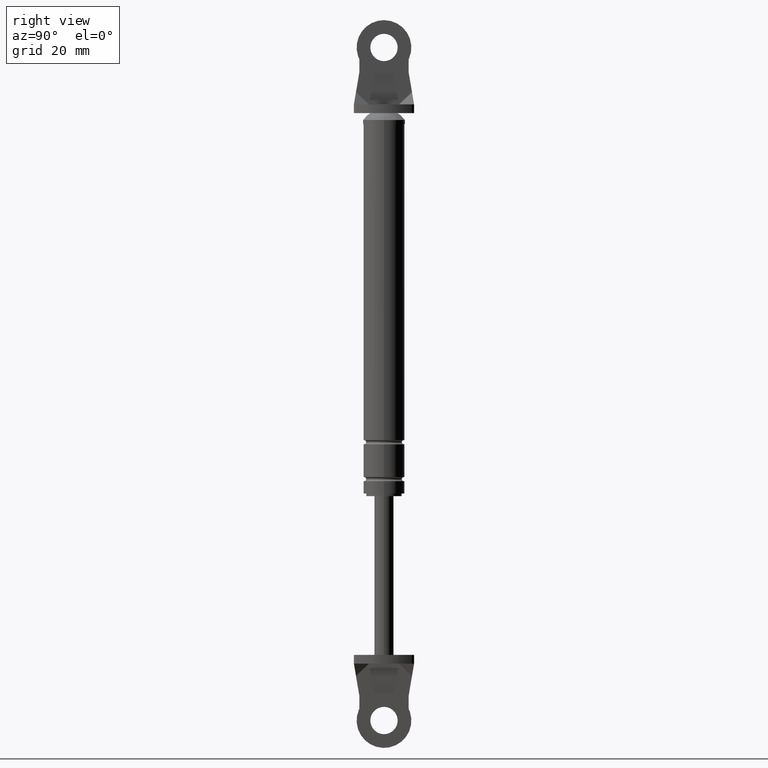
[diagram: clean part render]
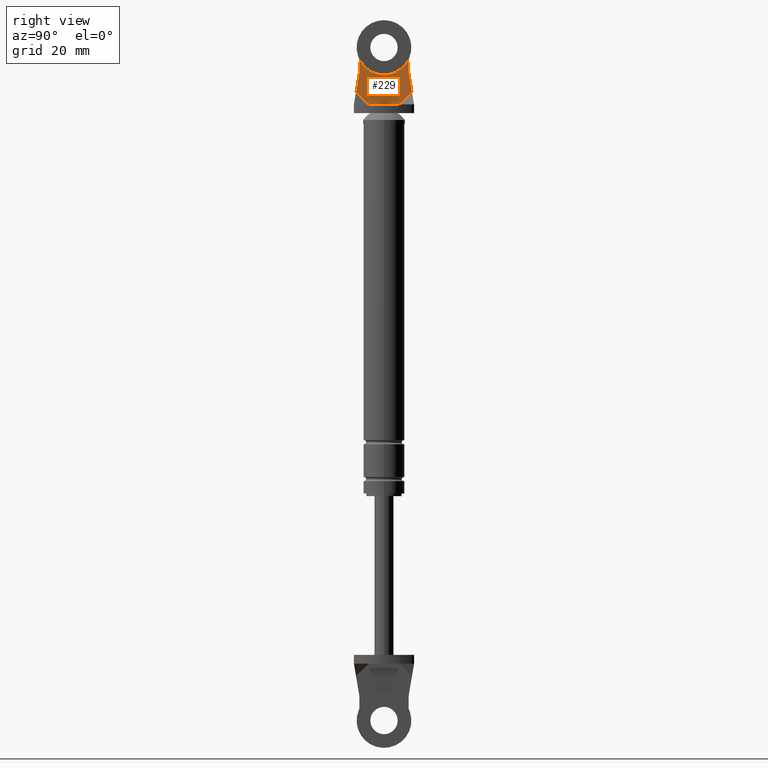
[diagram: same view with one face highlighted and labeled with its STEP entity id]
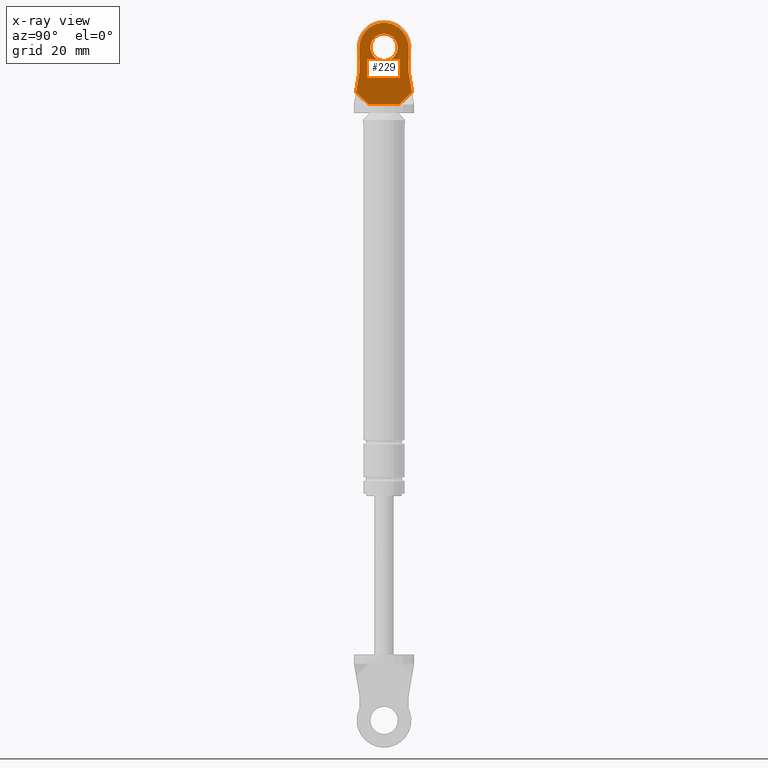
[diagram: x-ray of the same camera — body ghosted, the highlighted face saturated]
A machine part, right view. The second image highlights one B-rep face of the part: STEP entity #229.
The next image is the same camera in x-ray: the body ghosted, the highlighted face saturated — about 0% of this face is hidden behind the body in this view.
In plain terms, the highlighted planar face has unit normal (1, 0, 0).
Its self-contained STEP definition (entity closure, byte-faithful):
#229=ADVANCED_FACE('',(#540,#541),#539,.T.);
#539=PLANE('',#1231);
#540=FACE_OUTER_BOUND('',#1232,.T.);
#541=FACE_BOUND('',#1233,.T.);
#1228=CARTESIAN_POINT('',(3.20000000000E+000,-1.22847457627E+001,2.37800000000E+001));
#1229=DIRECTION('',(1.00000000000E+000,0.00000000000E+000,0.00000000000E+000));
#1230=DIRECTION('',(0.00000000000E+000,0.00000000000E+000,-1.00000000000E+000));
#1231=AXIS2_PLACEMENT_3D('',#1228,#1229,#1230);
#1232=EDGE_LOOP('',(#1731,#1732,#1733,#1734,#1735,#1736,#1737,#1738));
#1233=EDGE_LOOP('',(#1739,#1740));
#1731=ORIENTED_EDGE('',*,*,#2081,.F.);
#1732=ORIENTED_EDGE('',*,*,#2051,.F.);
#1733=ORIENTED_EDGE('',*,*,#2082,.F.);
#1734=ORIENTED_EDGE('',*,*,#2077,.T.);
#1735=ORIENTED_EDGE('',*,*,#2074,.T.);
#1736=ORIENTED_EDGE('',*,*,#2071,.F.);
#1737=ORIENTED_EDGE('',*,*,#2068,.T.);
#1738=ORIENTED_EDGE('',*,*,#2065,.T.);
#1739=ORIENTED_EDGE('',*,*,#2083,.T.);
#1740=ORIENTED_EDGE('',*,*,#2084,.T.);
#2051=EDGE_CURVE('',#2566,#2573,#2574,.T.);
#2065=EDGE_CURVE('',#2665,#2658,#2666,.T.);
#2068=EDGE_CURVE('',#2685,#2665,#2686,.T.);
#2071=EDGE_CURVE('',#2685,#2705,#2706,.T.);
#2074=EDGE_CURVE('',#2725,#2705,#2726,.T.);
#2077=EDGE_CURVE('',#2744,#2725,#2745,.T.);
#2081=EDGE_CURVE('',#2573,#2658,#2769,.T.);
#2082=EDGE_CURVE('',#2744,#2566,#2775,.T.);
#2083=EDGE_CURVE('',#2781,#2782,#2783,.T.);
#2084=EDGE_CURVE('',#2782,#2781,#2789,.T.);
#2566=VERTEX_POINT('',#3760);
#2573=VERTEX_POINT('',#3763);
#2574=LINE('',#3764,#3765);
#2658=VERTEX_POINT('',#3811);
#2665=VERTEX_POINT('',#3814);
#2666=LINE('',#3815,#3816);
#2685=VERTEX_POINT('',#3825);
#2686=LINE('',#3826,#3827);
#2705=VERTEX_POINT('',#3837);
#2706=CIRCLE('',#3841,9.00000000000E+000);
#2725=VERTEX_POINT('',#3849);
#2726=LINE('',#3850,#3851);
#2744=VERTEX_POINT('',#3859);
#2745=LINE('',#3860,#3861);
#2769=LINE('',#3870,#3871);
#2775=LINE('',#3873,#3874);
#2781=VERTEX_POINT('',#3876);
#2782=VERTEX_POINT('',#3877);
#2783=CIRCLE('',#3881,5.00000000000E+000);
#2789=CIRCLE('',#3885,5.00000000000E+000);
#3760=CARTESIAN_POINT('',(3.20000000000E+000,-5.50000000000E+000,2.08000000000E+001));
#3763=CARTESIAN_POINT('',(3.20000000000E+000,5.50000000000E+000,2.08000000000E+001));
#3764=CARTESIAN_POINT('',(3.20000000000E+000,-5.50000000000E+000,2.08000000000E+001));
#3765=VECTOR('',#3766,1.10000000000E+001);
#3766=DIRECTION('',(0.00000000000E+000,1.00000000000E+000,0.00000000000E+000));
#3811=CARTESIAN_POINT('',(3.20000000000E+000,1.02372881356E+001,1.63000000000E+001));
#3814=CARTESIAN_POINT('',(3.20000000000E+000,9.00000000000E+000,9.00000000000E+000));
#3815=CARTESIAN_POINT('',(3.20000000000E+000,9.00000000000E+000,9.00000000000E+000));
#3816=VECTOR('',#3817,7.40411250120E+000);
#3817=DIRECTION('',(0.00000000000E+000,1.67108230108E-001,9.85938557634E-001));
#3825=CARTESIAN_POINT('',(3.20000000000E+000,9.00000000000E+000,-9.98396631623E-015));
#3826=CARTESIAN_POINT('',(3.20000000000E+000,9.00000000000E+000,-9.98396631623E-015));
#3827=VECTOR('',#3828,9.00000000000E+000);
#3828=DIRECTION('',(0.00000000000E+000,0.00000000000E+000,1.00000000000E+000));
#3837=CARTESIAN_POINT('',(3.20000000000E+000,-9.00000000000E+000,1.40239463254E-015));
#3838=CARTESIAN_POINT('',(3.20000000000E+000,3.19744231092E-014,-8.88178419700E-015));
#3839=DIRECTION('',(-1.00000000000E+000,-0.00000000000E+000,-0.00000000000E+000));
#3840=DIRECTION('',(-0.00000000000E+000,-0.00000000000E+000,1.00000000000E+000));
#3841=AXIS2_PLACEMENT_3D('',#3838,#3839,#3840);
#3849=CARTESIAN_POINT('',(3.20000000000E+000,-9.00000000000E+000,9.00000000000E+000));
#3850=CARTESIAN_POINT('',(3.20000000000E+000,-9.00000000000E+000,9.00000000000E+000));
#3851=VECTOR('',#3852,9.00000000000E+000);
#3852=DIRECTION('',(0.00000000000E+000,0.00000000000E+000,-1.00000000000E+000));
#3859=CARTESIAN_POINT('',(3.20000000000E+000,-1.02372881356E+001,1.63000000000E+001));
#3860=CARTESIAN_POINT('',(3.20000000000E+000,-1.02372881356E+001,1.63000000000E+001));
#3861=VECTOR('',#3862,7.40411250120E+000);
#3862=DIRECTION('',(0.00000000000E+000,1.67108230108E-001,-9.85938557634E-001));
#3870=CARTESIAN_POINT('',(3.20000000000E+000,5.50000000000E+000,2.08000000000E+001));
#3871=VECTOR('',#3872,6.53390380092E+000);
#3872=DIRECTION('',(0.00000000000E+000,7.25031815578E-001,-6.88715374011E-001));
#3873=CARTESIAN_POINT('',(3.20000000000E+000,-1.02372881356E+001,1.63000000000E+001));
#3874=VECTOR('',#3875,6.53390380092E+000);
#3875=DIRECTION('',(0.00000000000E+000,7.25031815578E-001,6.88715374011E-001));
#3876=CARTESIAN_POINT('',(3.20000000000E+000,3.19744231092E-014,-5.00000000000E+000));
#3877=CARTESIAN_POINT('',(3.20000000000E+000,3.25665420557E-014,5.00000000000E+000));
#3878=CARTESIAN_POINT('',(3.20000000000E+000,3.19744231092E-014,-8.88178419700E-015));
#3879=DIRECTION('',(-1.00000000000E+000,0.00000000000E+000,-0.00000000000E+000));
#3880=DIRECTION('',(0.00000000000E+000,-1.22460635382E-016,-1.00000000000E+000));
#3881=AXIS2_PLACEMENT_3D('',#3878,#3879,#3880);
#3882=CARTESIAN_POINT('',(3.20000000000E+000,3.19744231092E-014,-8.88178419700E-015));
#3883=DIRECTION('',(-1.00000000000E+000,0.00000000000E+000,-0.00000000000E+000));
#3884=DIRECTION('',(0.00000000000E+000,-1.22460635382E-016,-1.00000000000E+000));
#3885=AXIS2_PLACEMENT_3D('',#3882,#3883,#3884);